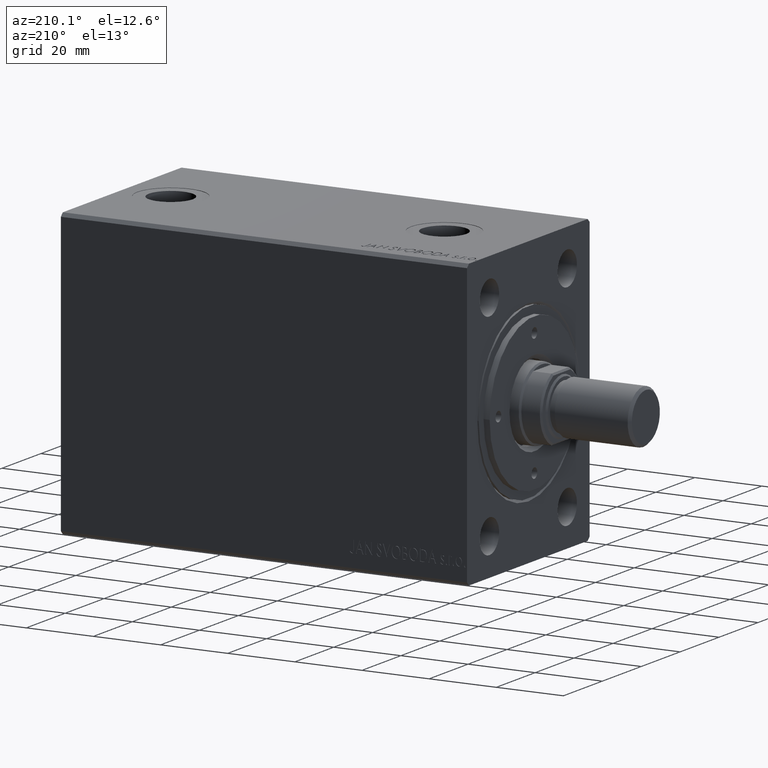
[diagram: clean part render]
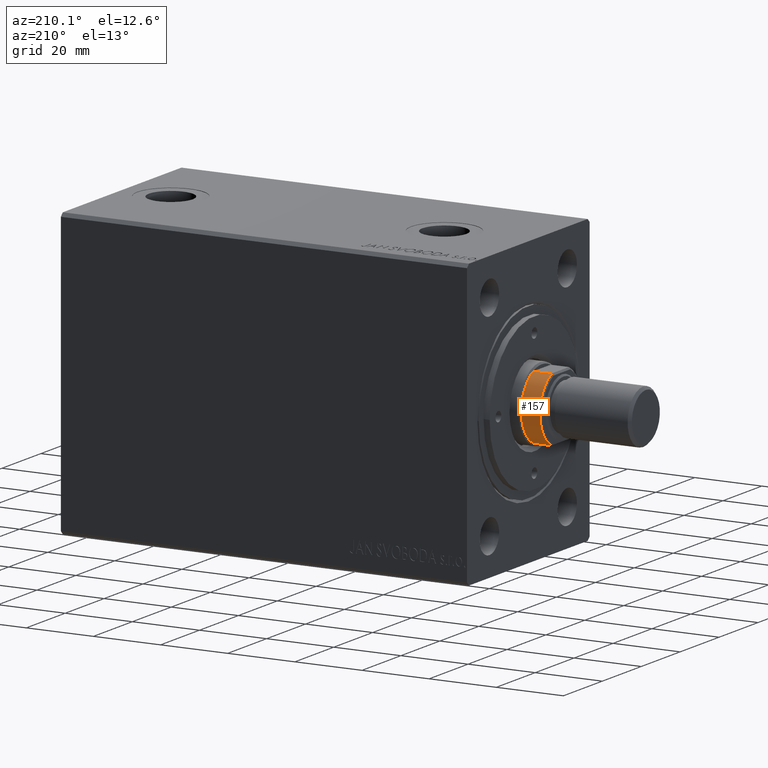
[diagram: same view with one face highlighted and labeled with its STEP entity id]
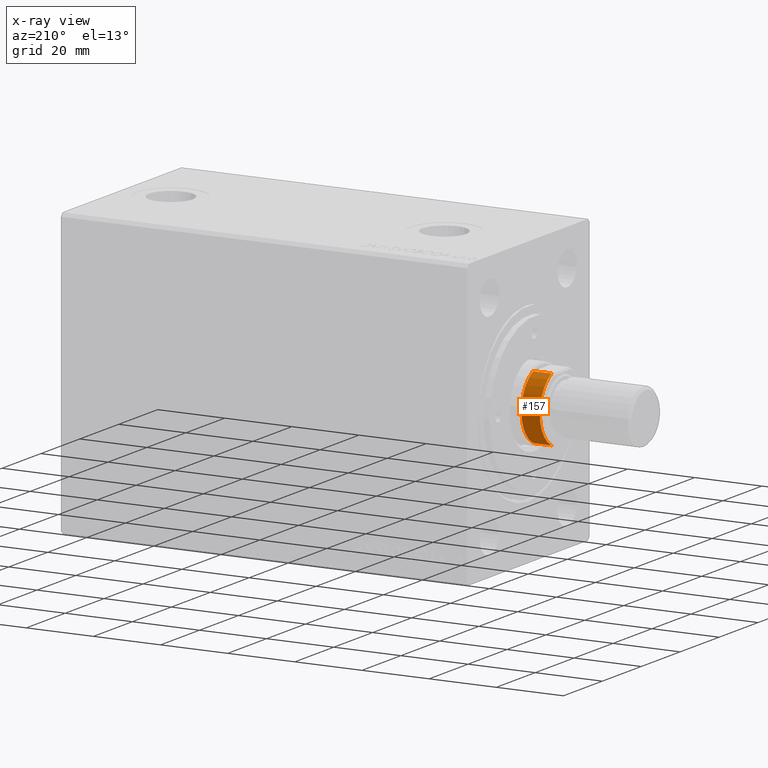
[diagram: x-ray of the same camera — body ghosted, the highlighted face saturated]
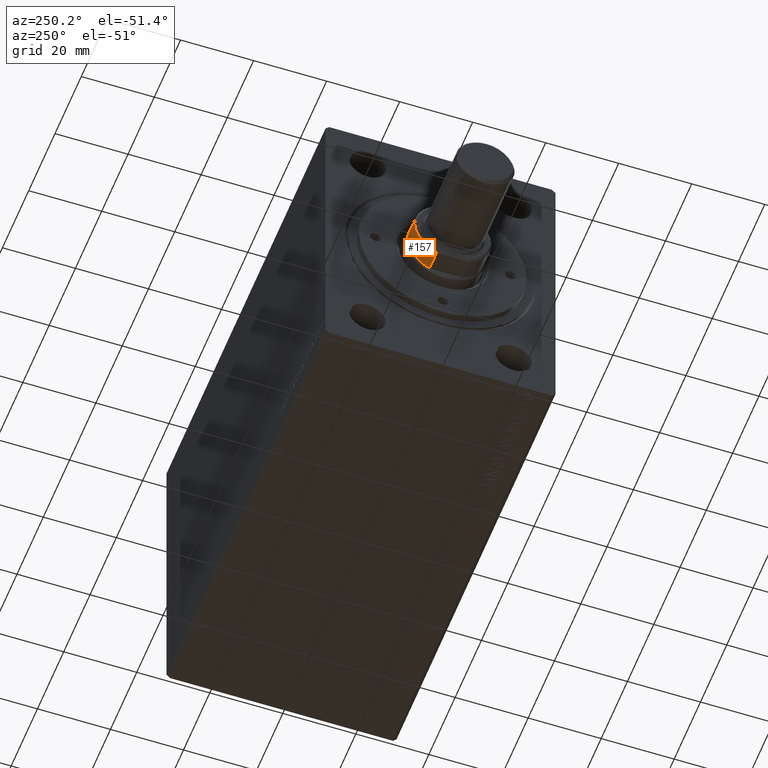
[diagram: same view with one face highlighted and labeled with its STEP entity id]
A machine part, auxiliary view. The second image highlights one B-rep face of the part: STEP entity #157.
The next image is the same camera in x-ray: the body ghosted, the highlighted face saturated — about 0% of this face is hidden behind the body in this view.
A second angle (auxiliary view) of the same face is appended — the face is thin or edge-on in the first view.
In plain terms, the highlighted cylindrical surface (partial cylindrical patch) has radius 10.5 mm, axis along (1, -0, -0).
Its self-contained STEP definition (entity closure, byte-faithful):
#157 = ADVANCED_FACE ( 'NONE', ( #14501 ), #41237, .T. ) ;
#2326 = AXIS2_PLACEMENT_3D ( 'NONE', #30678, #34700, #6633 ) ;
#2847 = VERTEX_POINT ( 'NONE', #40715 ) ;
#3301 = ORIENTED_EDGE ( 'NONE', *, *, #5917, .T. ) ;
#5712 = CARTESIAN_POINT ( 'NONE',  ( 0.000000000000000000, 0.000000000000000000, 115.2000000000000171 ) ) ;
#5917 = EDGE_CURVE ( 'NONE', #2847, #18231, #12272, .T. ) ;
#6078 = VECTOR ( 'NONE', #36302, 1000.000000000000000 ) ;
#6633 = DIRECTION ( 'NONE',  ( -1.000000000000000000, 0.000000000000000000, 0.000000000000000000 ) ) ;
#9215 = CARTESIAN_POINT ( 'NONE',  ( 9.500000000000000000, 4.472135954999667540, 109.7000000000000028 ) ) ;
#11564 = VERTEX_POINT ( 'NONE', #28923 ) ;
#12272 = LINE ( 'NONE', #18787, #6078 ) ;
#12996 = VERTEX_POINT ( 'NONE', #23041 ) ;
#14501 = FACE_OUTER_BOUND ( 'NONE', #23058, .T. ) ;
#14534 = LINE ( 'NONE', #17693, #20216 ) ;
#17271 = EDGE_CURVE ( 'NONE', #18231, #11564, #35733, .T. ) ;
#17693 = CARTESIAN_POINT ( 'NONE',  ( -9.500000000000000000, 4.472135954999666652, 115.7000000000000171 ) ) ;
#18231 = VERTEX_POINT ( 'NONE', #9215 ) ;
#18738 = EDGE_CURVE ( 'NONE', #12996, #2847, #42290, .T. ) ;
#18787 = CARTESIAN_POINT ( 'NONE',  ( 9.500000000000000000, 4.472135954999667540, 115.7000000000000171 ) ) ;
#20216 = VECTOR ( 'NONE', #24424, 1000.000000000000000 ) ;
#23041 = CARTESIAN_POINT ( 'NONE',  ( -9.500000000000000000, 4.472135954999666652, 115.2000000000000171 ) ) ;
#23058 = EDGE_LOOP ( 'NONE', ( #39607, #44033, #3301, #35685 ) ) ;
#24080 = CARTESIAN_POINT ( 'NONE',  ( 0.000000000000000000, 0.000000000000000000, 109.7000000000000028 ) ) ;
#24424 = DIRECTION ( 'NONE',  ( -0.000000000000000000, -0.000000000000000000, -1.000000000000000000 ) ) ;
#24985 = AXIS2_PLACEMENT_3D ( 'NONE', #24080, #41365, #38426 ) ;
#27146 = EDGE_CURVE ( 'NONE', #12996, #11564, #14534, .T. ) ;
#28923 = CARTESIAN_POINT ( 'NONE',  ( -9.500000000000000000, 4.472135954999667540, 109.7000000000000028 ) ) ;
#29755 = DIRECTION ( 'NONE',  ( 0.000000000000000000, 0.000000000000000000, -1.000000000000000000 ) ) ;
#30678 = CARTESIAN_POINT ( 'NONE',  ( 0.000000000000000000, 0.000000000000000000, 115.7000000000000171 ) ) ;
#34700 = DIRECTION ( 'NONE',  ( -0.000000000000000000, -0.000000000000000000, -1.000000000000000000 ) ) ;
#35685 = ORIENTED_EDGE ( 'NONE', *, *, #17271, .T. ) ;
#35733 = CIRCLE ( 'NONE', #24985, 10.50000000000003730 ) ;
#36302 = DIRECTION ( 'NONE',  ( -0.000000000000000000, -0.000000000000000000, -1.000000000000000000 ) ) ;
#38426 = DIRECTION ( 'NONE',  ( 1.000000000000000000, 0.000000000000000000, 0.000000000000000000 ) ) ;
#39607 = ORIENTED_EDGE ( 'NONE', *, *, #27146, .F. ) ;
#40715 = CARTESIAN_POINT ( 'NONE',  ( 9.500000000000000000, 4.472135954999667540, 115.2000000000000171 ) ) ;
#40871 = AXIS2_PLACEMENT_3D ( 'NONE', #5712, #29755, #43029 ) ;
#41237 = CYLINDRICAL_SURFACE ( 'NONE', #2326, 10.50000000000003730 ) ;
#41365 = DIRECTION ( 'NONE',  ( 0.000000000000000000, 0.000000000000000000, 1.000000000000000000 ) ) ;
#42290 = CIRCLE ( 'NONE', #40871, 10.50000000000003730 ) ;
#43029 = DIRECTION ( 'NONE',  ( 1.000000000000000000, 8.881784197001252323E-16, 0.000000000000000000 ) ) ;
#44033 = ORIENTED_EDGE ( 'NONE', *, *, #18738, .T. ) ;